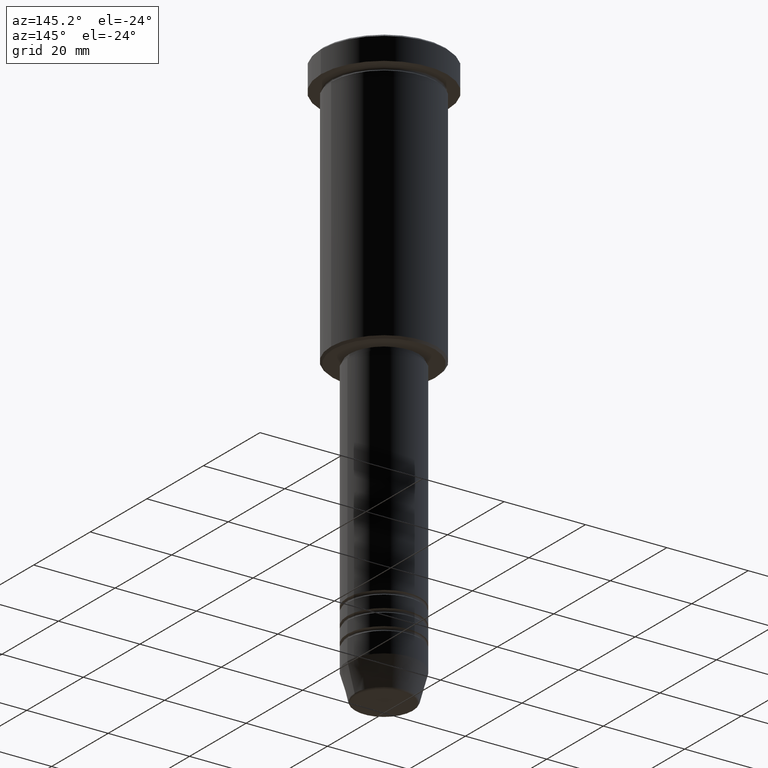
[diagram: clean part render]
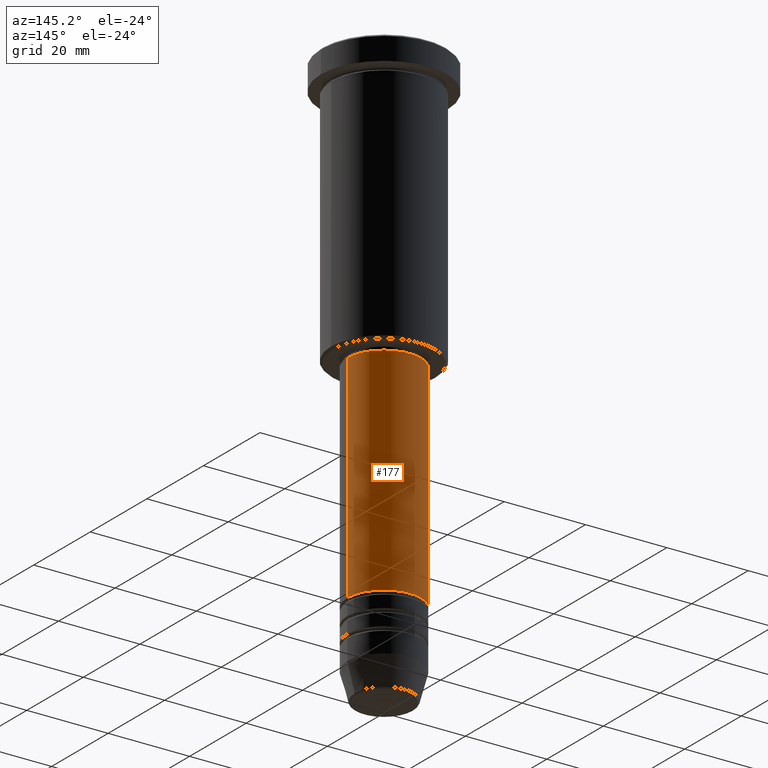
[diagram: same view with one face highlighted and labeled with its STEP entity id]
A machine part, auxiliary view. The second image highlights one B-rep face of the part: STEP entity #177.
In plain terms, the highlighted cylindrical surface (partial cylindrical patch) has radius 9 mm, axis along (-0, -0, 1).
Its self-contained STEP definition (entity closure, byte-faithful):
#36 = DIRECTION ( 'NONE',  ( -0.000000000000000000, -0.000000000000000000, 1.000000000000000000 ) ) ;
#40 = VERTEX_POINT ( 'NONE', #741 ) ;
#43 = CARTESIAN_POINT ( 'NONE',  ( 8.999999999999998224, 0.000000000000000000, -67.00000000000000000 ) ) ;
#56 = DIRECTION ( 'NONE',  ( 1.000000000000000000, 0.000000000000000000, 0.000000000000000000 ) ) ;
#89 = VECTOR ( 'NONE', #941, 1000.000000000000000 ) ;
#113 = DIRECTION ( 'NONE',  ( -0.000000000000000000, -0.000000000000000000, 1.000000000000000000 ) ) ;
#140 = CYLINDRICAL_SURFACE ( 'NONE', #226, 9.000000000000000000 ) ;
#157 = FACE_OUTER_BOUND ( 'NONE', #160, .T. ) ;
#160 = EDGE_LOOP ( 'NONE', ( #524, #550, #1120, #1014 ) ) ;
#169 = EDGE_CURVE ( 'NONE', #40, #1109, #615, .T. ) ;
#177 = ADVANCED_FACE ( 'NONE', ( #157 ), #140, .T. ) ;
#226 = AXIS2_PLACEMENT_3D ( 'NONE', #880, #36, #56 ) ;
#231 = VERTEX_POINT ( 'NONE', #537 ) ;
#240 = AXIS2_PLACEMENT_3D ( 'NONE', #1010, #926, #587 ) ;
#319 = VECTOR ( 'NONE', #700, 1000.000000000000000 ) ;
#380 = CARTESIAN_POINT ( 'NONE',  ( 0.000000000000000000, 0.000000000000000000, -67.00000000000000000 ) ) ;
#431 = CARTESIAN_POINT ( 'NONE',  ( 9.000000000000000000, 0.000000000000000000, 0.000000000000000000 ) ) ;
#524 = ORIENTED_EDGE ( 'NONE', *, *, #766, .T. ) ;
#537 = CARTESIAN_POINT ( 'NONE',  ( -8.999999999999998224, 1.102182119232617714E-15, -67.00000000000000000 ) ) ;
#550 = ORIENTED_EDGE ( 'NONE', *, *, #777, .T. ) ;
#587 = DIRECTION ( 'NONE',  ( 1.000000000000000000, 0.000000000000000000, 0.000000000000000000 ) ) ;
#615 = LINE ( 'NONE', #431, #319 ) ;
#644 = CARTESIAN_POINT ( 'NONE',  ( -9.000000000000001776, 1.102182119232617911E-15, -119.9999999999999005 ) ) ;
#666 = DIRECTION ( 'NONE',  ( 1.000000000000000000, 0.000000000000000000, 0.000000000000000000 ) ) ;
#700 = DIRECTION ( 'NONE',  ( -0.000000000000000000, -0.000000000000000000, 1.000000000000000000 ) ) ;
#741 = CARTESIAN_POINT ( 'NONE',  ( 9.000000000000001776, 0.000000000000000000, -119.9999999999999005 ) ) ;
#747 = LINE ( 'NONE', #1003, #89 ) ;
#766 = EDGE_CURVE ( 'NONE', #40, #981, #1129, .T. ) ;
#777 = EDGE_CURVE ( 'NONE', #981, #231, #747, .T. ) ;
#799 = CIRCLE ( 'NONE', #858, 8.999999999999998224 ) ;
#858 = AXIS2_PLACEMENT_3D ( 'NONE', #380, #113, #666 ) ;
#880 = CARTESIAN_POINT ( 'NONE',  ( 0.000000000000000000, 0.000000000000000000, 0.000000000000000000 ) ) ;
#926 = DIRECTION ( 'NONE',  ( -0.000000000000000000, -0.000000000000000000, 1.000000000000000000 ) ) ;
#941 = DIRECTION ( 'NONE',  ( -0.000000000000000000, -0.000000000000000000, 1.000000000000000000 ) ) ;
#981 = VERTEX_POINT ( 'NONE', #644 ) ;
#1003 = CARTESIAN_POINT ( 'NONE',  ( -9.000000000000000000, 1.102182119232617714E-15, 0.000000000000000000 ) ) ;
#1010 = CARTESIAN_POINT ( 'NONE',  ( 0.000000000000000000, 0.000000000000000000, -119.9999999999999005 ) ) ;
#1012 = EDGE_CURVE ( 'NONE', #1109, #231, #799, .T. ) ;
#1014 = ORIENTED_EDGE ( 'NONE', *, *, #169, .F. ) ;
#1109 = VERTEX_POINT ( 'NONE', #43 ) ;
#1120 = ORIENTED_EDGE ( 'NONE', *, *, #1012, .F. ) ;
#1129 = CIRCLE ( 'NONE', #240, 9.000000000000001776 ) ;